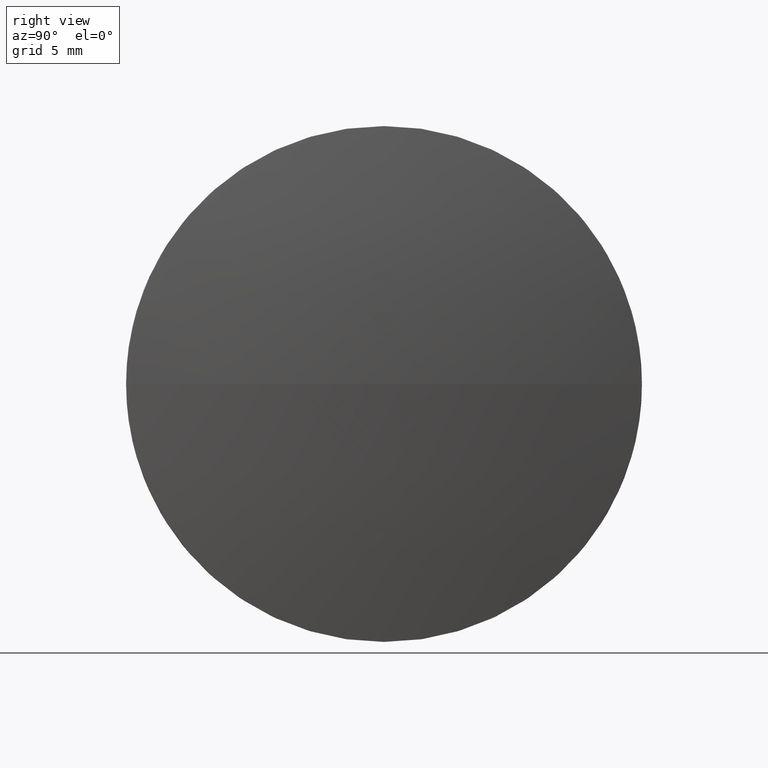
[diagram: clean part render]
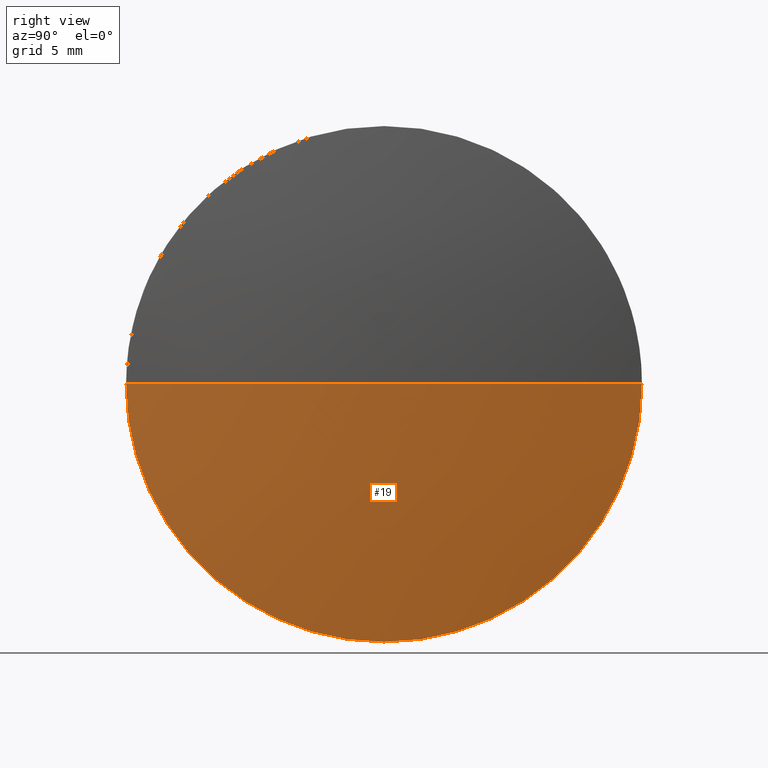
[diagram: same view with one face highlighted and labeled with its STEP entity id]
A machine part, right view. The second image highlights one B-rep face of the part: STEP entity #19.
In plain terms, the highlighted spherical surface has radius 128.985 mm.
Its self-contained STEP definition (entity closure, byte-faithful):
#13 = DIRECTION ( 'NONE',  ( 0.0000000000000000000, 0.0000000000000000000, 1.000000000000000000 ) ) ;
#16 = DIRECTION ( 'NONE',  ( -1.000000000000000000, 0.0000000000000000000, 0.0000000000000000000 ) ) ;
#19 = ADVANCED_FACE ( 'NONE', ( #150 ), #88, .T. ) ;
#22 = AXIS2_PLACEMENT_3D ( 'NONE', #146, #100, #16 ) ;
#26 = CARTESIAN_POINT ( 'NONE',  ( 452.4479601243584200, 48.34004020051941100, 0.0000000000000000000 ) ) ;
#28 = EDGE_LOOP ( 'NONE', ( #126, #96, #80, #183 ) ) ;
#32 = VERTEX_POINT ( 'NONE', #98 ) ;
#37 = DIRECTION ( 'NONE',  ( 0.0000000000000000000, -1.224646799147353200E-016, 1.000000000000000000 ) ) ;
#52 = DIRECTION ( 'NONE',  ( 0.0000000000000000000, -1.000000000000000000, 0.0000000000000000000 ) ) ;
#55 = CARTESIAN_POINT ( 'NONE',  ( 452.4479601243584200, 48.34004020051941100, 0.0000000000000000000 ) ) ;
#57 = DIRECTION ( 'NONE',  ( -1.000000000000000000, -0.0000000000000000000, -0.0000000000000000000 ) ) ;
#59 = CARTESIAN_POINT ( 'NONE',  ( 452.4479601243584200, 28.34004020051945700, 0.0000000000000000000 ) ) ;
#64 = CIRCLE ( 'NONE', #22, 128.9851282051280900 ) ;
#76 = EDGE_CURVE ( 'NONE', #32, #139, #103, .T. ) ;
#78 = VERTEX_POINT ( 'NONE', #127 ) ;
#79 = CARTESIAN_POINT ( 'NONE',  ( 325.0228319192303300, 48.34004020051951800, 0.0000000000000000000 ) ) ;
#80 = ORIENTED_EDGE ( 'NONE', *, *, #99, .F. ) ;
#81 = CARTESIAN_POINT ( 'NONE',  ( 325.0228319192303300, 48.34004020051951800, 0.0000000000000000000 ) ) ;
#88 = SPHERICAL_SURFACE ( 'NONE', #165, 128.9851282051280900 ) ;
#94 = DIRECTION ( 'NONE',  ( 0.0000000000000000000, 0.0000000000000000000, 1.000000000000000000 ) ) ;
#96 = ORIENTED_EDGE ( 'NONE', *, *, #123, .T. ) ;
#98 = CARTESIAN_POINT ( 'NONE',  ( 454.0079601243584200, 48.34004020051951000, 0.0000000000000000000 ) ) ;
#99 = EDGE_CURVE ( 'NONE', #78, #172, #111, .T. ) ;
#100 = DIRECTION ( 'NONE',  ( 0.0000000000000000000, 0.0000000000000000000, -1.000000000000000000 ) ) ;
#103 = CIRCLE ( 'NONE', #118, 128.9851282051280900 ) ;
#111 = CIRCLE ( 'NONE', #138, 19.99999999999999600 ) ;
#114 = EDGE_CURVE ( 'NONE', #139, #78, #166, .T. ) ;
#118 = AXIS2_PLACEMENT_3D ( 'NONE', #81, #37, #128 ) ;
#123 = EDGE_CURVE ( 'NONE', #32, #172, #64, .T. ) ;
#126 = ORIENTED_EDGE ( 'NONE', *, *, #76, .F. ) ;
#127 = CARTESIAN_POINT ( 'NONE',  ( 452.4479601243584200, 48.34004020051941100, -19.99999999999999600 ) ) ;
#128 = DIRECTION ( 'NONE',  ( 0.0000000000000000000, -1.000000000000000000, -1.224646799147353200E-016 ) ) ;
#131 = CARTESIAN_POINT ( 'NONE',  ( 452.4479601243584200, 68.34004020051948200, 2.449293598294701000E-015 ) ) ;
#138 = AXIS2_PLACEMENT_3D ( 'NONE', #55, #174, #13 ) ;
#139 = VERTEX_POINT ( 'NONE', #131 ) ;
#146 = CARTESIAN_POINT ( 'NONE',  ( 325.0228319192303300, 48.34004020051951800, 0.0000000000000000000 ) ) ;
#150 = FACE_OUTER_BOUND ( 'NONE', #28, .T. ) ;
#161 = DIRECTION ( 'NONE',  ( 0.0000000000000000000, 0.0000000000000000000, 1.000000000000000000 ) ) ;
#165 = AXIS2_PLACEMENT_3D ( 'NONE', #79, #94, #52 ) ;
#166 = CIRCLE ( 'NONE', #179, 19.99999999999999600 ) ;
#172 = VERTEX_POINT ( 'NONE', #59 ) ;
#174 = DIRECTION ( 'NONE',  ( -1.000000000000000000, -0.0000000000000000000, -0.0000000000000000000 ) ) ;
#179 = AXIS2_PLACEMENT_3D ( 'NONE', #26, #57, #161 ) ;
#183 = ORIENTED_EDGE ( 'NONE', *, *, #114, .F. ) ;